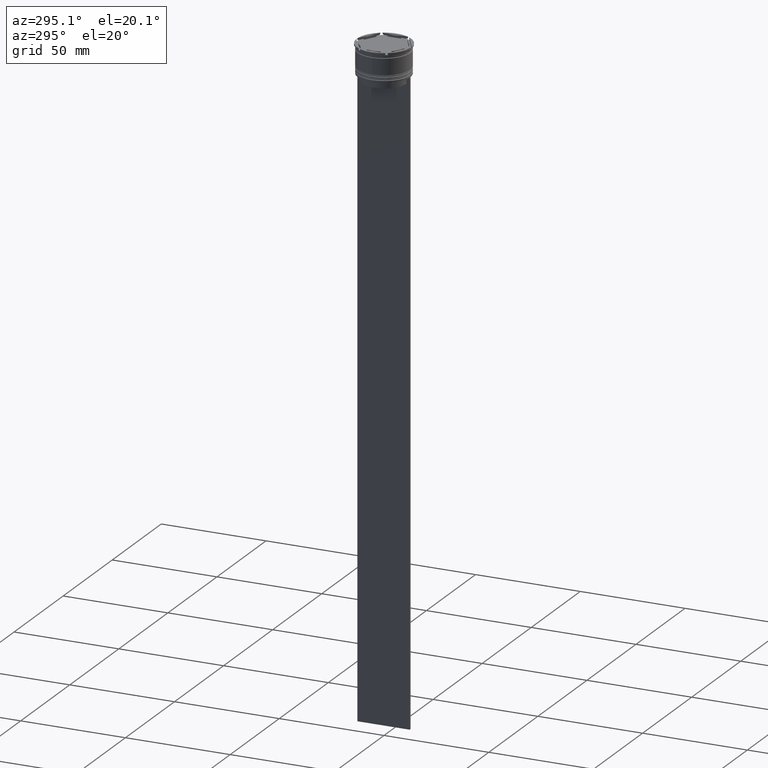
[diagram: clean part render]
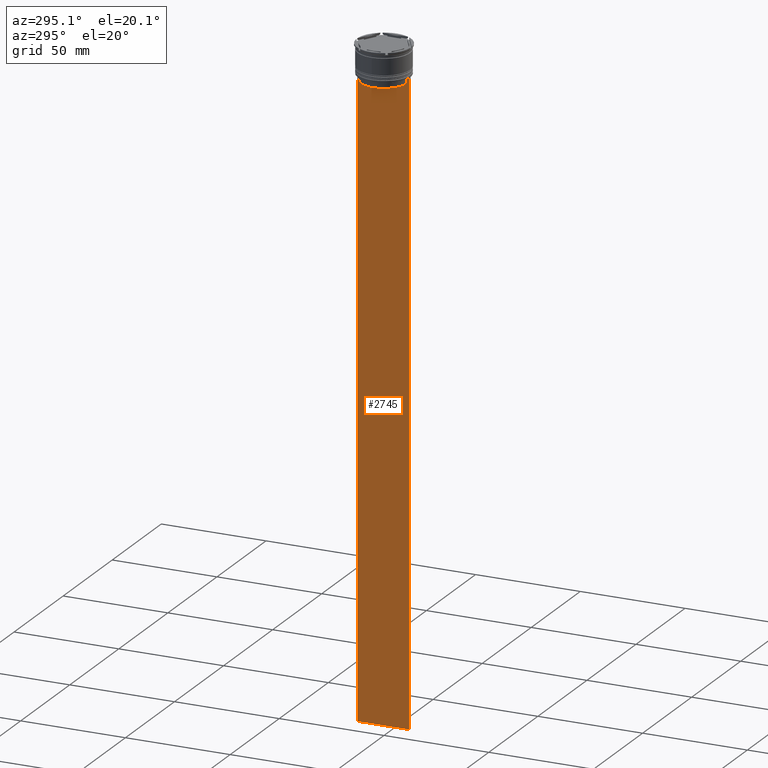
[diagram: same view with one face highlighted and labeled with its STEP entity id]
A machine part, auxiliary view. The second image highlights one B-rep face of the part: STEP entity #2745.
In plain terms, the highlighted planar face has unit normal (-1, 0, 0).
Its self-contained STEP definition (entity closure, byte-faithful):
#15 = CARTESIAN_POINT ( 'NONE',  ( -0.5000000000000000000, -12.49999999999999289, -14.00000000000000178 ) ) ;
#19 = VERTEX_POINT ( 'NONE', #562 ) ;
#29 = DIRECTION ( 'NONE',  ( 0.000000000000000000, 0.000000000000000000, -1.000000000000000000 ) ) ;
#40 = CARTESIAN_POINT ( 'NONE',  ( -0.5000000000000000000, -12.49999999999999289, -314.0000000000000000 ) ) ;
#54 = ORIENTED_EDGE ( 'NONE', *, *, #438, .F. ) ;
#62 = ORIENTED_EDGE ( 'NONE', *, *, #2740, .F. ) ;
#72 = LINE ( 'NONE', #1598, #499 ) ;
#87 = CARTESIAN_POINT ( 'NONE',  ( -0.5000000000000000000, -12.49999999999999289, -314.0000000000000000 ) ) ;
#92 = VECTOR ( 'NONE', #307, 1000.000000000000000 ) ;
#94 = VECTOR ( 'NONE', #1377, 1000.000000000000000 ) ;
#138 = DIRECTION ( 'NONE',  ( 0.000000000000000000, 0.000000000000000000, -1.000000000000000000 ) ) ;
#188 = EDGE_CURVE ( 'NONE', #1341, #485, #2579, .T. ) ;
#235 = LINE ( 'NONE', #1459, #92 ) ;
#263 = CARTESIAN_POINT ( 'NONE',  ( -0.5000000000000000000, -12.49999999999999289, -14.00000000000000178 ) ) ;
#296 = EDGE_CURVE ( 'NONE', #447, #1123, #235, .T. ) ;
#307 = DIRECTION ( 'NONE',  ( 0.000000000000000000, -1.000000000000000000, 0.000000000000000000 ) ) ;
#338 = VECTOR ( 'NONE', #1777, 1000.000000000000000 ) ;
#361 = LINE ( 'NONE', #1239, #2498 ) ;
#438 = EDGE_CURVE ( 'NONE', #2641, #2397, #917, .T. ) ;
#440 = CARTESIAN_POINT ( 'NONE',  ( -0.5000000000000000000, 12.50000000000000711, -314.0000000000000000 ) ) ;
#447 = VERTEX_POINT ( 'NONE', #2461 ) ;
#485 = VERTEX_POINT ( 'NONE', #2881 ) ;
#499 = VECTOR ( 'NONE', #2520, 1000.000000000000000 ) ;
#562 = CARTESIAN_POINT ( 'NONE',  ( -0.5000000000000000000, -10.88852607105296322, -14.50000000000000000 ) ) ;
#569 = CARTESIAN_POINT ( 'NONE',  ( -0.5000000000000000000, -11.38902980942626719, -14.00000000000000178 ) ) ;
#578 = ORIENTED_EDGE ( 'NONE', *, *, #2884, .F. ) ;
#584 = DIRECTION ( 'NONE',  ( 0.000000000000000000, 0.000000000000000000, 1.000000000000000000 ) ) ;
#588 = CARTESIAN_POINT ( 'NONE',  ( -0.5000000000000000000, 11.05536450345590538, -14.33333719074559376 ) ) ;
#593 = VERTEX_POINT ( 'NONE', #1510 ) ;
#622 = VERTEX_POINT ( 'NONE', #1028 ) ;
#629 = ORIENTED_EDGE ( 'NONE', *, *, #1926, .F. ) ;
#675 = ORIENTED_EDGE ( 'NONE', *, *, #1202, .F. ) ;
#700 = VECTOR ( 'NONE', #29, 1000.000000000000000 ) ;
#704 = VECTOR ( 'NONE', #2817, 1000.000000000000000 ) ;
#716 = B_SPLINE_CURVE_WITH_KNOTS ( 'NONE', 3,
 ( #1223, #1025, #2766, #569 ),
 .UNSPECIFIED., .F., .F.,
 ( 4, 4 ),
 ( 0.05041323384703226551, 0.05112713601261605068 ),
 .UNSPECIFIED. ) ;
#717 = ORIENTED_EDGE ( 'NONE', *, *, #1444, .T. ) ;
#784 = EDGE_CURVE ( 'NONE', #485, #2302, #2701, .T. ) ;
#894 = CARTESIAN_POINT ( 'NONE',  ( -0.5000000000000000000, -12.49999999999999289, 11.01999200639360765 ) ) ;
#917 = LINE ( 'NONE', #40, #94 ) ;
#1025 = CARTESIAN_POINT ( 'NONE',  ( -0.5000000000000000000, -11.05536450423839234, -14.33333718996393102 ) ) ;
#1028 = CARTESIAN_POINT ( 'NONE',  ( -0.5000000000000000000, 12.38991525394746773, -14.00000000000000178 ) ) ;
#1115 = DIRECTION ( 'NONE',  ( 0.000000000000000000, 0.000000000000000000, -1.000000000000000000 ) ) ;
#1118 = AXIS2_PLACEMENT_3D ( 'NONE', #1670, #2360, #584 ) ;
#1123 = VERTEX_POINT ( 'NONE', #15 ) ;
#1202 = EDGE_CURVE ( 'NONE', #1123, #2641, #2222, .T. ) ;
#1223 = CARTESIAN_POINT ( 'NONE',  ( -0.5000000000000000000, -10.88852607105296322, -14.50000000000000000 ) ) ;
#1231 = CARTESIAN_POINT ( 'NONE',  ( -0.5000000000000000000, -10.88852607105296322, 0.000000000000000000 ) ) ;
#1239 = CARTESIAN_POINT ( 'NONE',  ( -0.5000000000000000000, -12.49999999999999289, -14.00000000000000178 ) ) ;
#1288 = CARTESIAN_POINT ( 'NONE',  ( -0.5000000000000000000, -11.38902980942626719, -14.00000000000000178 ) ) ;
#1296 = ORIENTED_EDGE ( 'NONE', *, *, #1806, .F. ) ;
#1338 = LINE ( 'NONE', #263, #338 ) ;
#1341 = VERTEX_POINT ( 'NONE', #1650 ) ;
#1370 = ORIENTED_EDGE ( 'NONE', *, *, #188, .F. ) ;
#1377 = DIRECTION ( 'NONE',  ( 0.000000000000000000, 1.000000000000000000, 0.000000000000000000 ) ) ;
#1383 = ORIENTED_EDGE ( 'NONE', *, *, #1621, .F. ) ;
#1444 = EDGE_CURVE ( 'NONE', #593, #2397, #2569, .T. ) ;
#1459 = CARTESIAN_POINT ( 'NONE',  ( -0.5000000000000000000, -12.49999999999999289, -14.00000000000000178 ) ) ;
#1468 = CARTESIAN_POINT ( 'NONE',  ( -0.5000000000000000000, 10.88852607105296322, -14.50000000000000000 ) ) ;
#1487 = ORIENTED_EDGE ( 'NONE', *, *, #2144, .F. ) ;
#1502 = CARTESIAN_POINT ( 'NONE',  ( -0.5000000000000000000, 12.50000000000000711, 11.01999200639360765 ) ) ;
#1510 = CARTESIAN_POINT ( 'NONE',  ( -0.5000000000000000000, 12.50000000000000711, -14.00000000000000178 ) ) ;
#1554 = EDGE_LOOP ( 'NONE', ( #629, #1383, #1487, #717, #54, #675, #2347, #62, #578, #1296, #1969, #1370 ) ) ;
#1598 = CARTESIAN_POINT ( 'NONE',  ( -0.5000000000000000000, -12.49999999999999289, -14.00000000000000178 ) ) ;
#1621 = EDGE_CURVE ( 'NONE', #622, #1996, #1338, .T. ) ;
#1636 = DIRECTION ( 'NONE',  ( -0.000000000000000000, -0.000000000000000000, 1.000000000000000000 ) ) ;
#1650 = CARTESIAN_POINT ( 'NONE',  ( -0.5000000000000000000, 10.88852607105296322, -14.50000000000000000 ) ) ;
#1670 = CARTESIAN_POINT ( 'NONE',  ( -0.5000000000000000000, -12.49999999999999289, 11.01999200639360765 ) ) ;
#1698 = PLANE ( 'NONE',  #1118 ) ;
#1777 = DIRECTION ( 'NONE',  ( 0.000000000000000000, -1.000000000000000000, 0.000000000000000000 ) ) ;
#1806 = EDGE_CURVE ( 'NONE', #2302, #19, #2098, .T. ) ;
#1914 = CARTESIAN_POINT ( 'NONE',  ( -0.5000000000000000000, 11.38902980942626719, -14.00000000000000178 ) ) ;
#1926 = EDGE_CURVE ( 'NONE', #1996, #1341, #2319, .T. ) ;
#1947 = VECTOR ( 'NONE', #1636, 1000.000000000000000 ) ;
#1969 = ORIENTED_EDGE ( 'NONE', *, *, #784, .F. ) ;
#1986 = CARTESIAN_POINT ( 'NONE',  ( -0.5000000000000000000, 10.90000000000000213, -17.00000000000000000 ) ) ;
#1992 = CARTESIAN_POINT ( 'NONE',  ( -0.5000000000000000000, 11.38902980942626719, -14.00000000000000178 ) ) ;
#1996 = VERTEX_POINT ( 'NONE', #1992 ) ;
#2098 = LINE ( 'NONE', #1231, #1947 ) ;
#2144 = EDGE_CURVE ( 'NONE', #593, #622, #72, .T. ) ;
#2222 = LINE ( 'NONE', #894, #2839 ) ;
#2302 = VERTEX_POINT ( 'NONE', #2758 ) ;
#2309 = VERTEX_POINT ( 'NONE', #1288 ) ;
#2319 = B_SPLINE_CURVE_WITH_KNOTS ( 'NONE', 3,
 ( #1914, #2578, #588, #1468 ),
 .UNSPECIFIED., .F., .F.,
 ( 4, 4 ),
 ( 0.01935560801904634073, 0.02006307108468586772 ),
 .UNSPECIFIED. ) ;
#2347 = ORIENTED_EDGE ( 'NONE', *, *, #296, .F. ) ;
#2360 = DIRECTION ( 'NONE',  ( -1.000000000000000000, 0.000000000000000000, 0.000000000000000000 ) ) ;
#2397 = VERTEX_POINT ( 'NONE', #440 ) ;
#2460 = CARTESIAN_POINT ( 'NONE',  ( -0.5000000000000000000, 10.88852607105296322, 0.000000000000000000 ) ) ;
#2461 = CARTESIAN_POINT ( 'NONE',  ( -0.5000000000000000000, -12.38991525394746773, -14.00000000000000178 ) ) ;
#2498 = VECTOR ( 'NONE', #2573, 1000.000000000000000 ) ;
#2520 = DIRECTION ( 'NONE',  ( 0.000000000000000000, -1.000000000000000000, 0.000000000000000000 ) ) ;
#2543 = FACE_OUTER_BOUND ( 'NONE', #1554, .T. ) ;
#2569 = LINE ( 'NONE', #1502, #2843 ) ;
#2573 = DIRECTION ( 'NONE',  ( 0.000000000000000000, -1.000000000000000000, 0.000000000000000000 ) ) ;
#2578 = CARTESIAN_POINT ( 'NONE',  ( -0.5000000000000000000, 11.22219891375843304, -14.16667035472756808 ) ) ;
#2579 = LINE ( 'NONE', #2460, #700 ) ;
#2641 = VERTEX_POINT ( 'NONE', #87 ) ;
#2701 = LINE ( 'NONE', #1986, #704 ) ;
#2740 = EDGE_CURVE ( 'NONE', #2309, #447, #361, .T. ) ;
#2745 = ADVANCED_FACE ( 'NONE', ( #2543 ), #1698, .T. ) ;
#2758 = CARTESIAN_POINT ( 'NONE',  ( -0.5000000000000000000, -10.88852607105296144, -17.00000000000000000 ) ) ;
#2766 = CARTESIAN_POINT ( 'NONE',  ( -0.5000000000000000000, -11.22219891450652973, -14.16667035398018903 ) ) ;
#2817 = DIRECTION ( 'NONE',  ( 0.000000000000000000, -1.000000000000000000, 0.000000000000000000 ) ) ;
#2839 = VECTOR ( 'NONE', #1115, 1000.000000000000000 ) ;
#2843 = VECTOR ( 'NONE', #138, 1000.000000000000000 ) ;
#2881 = CARTESIAN_POINT ( 'NONE',  ( -0.5000000000000000000, 10.88852607105296144, -17.00000000000000000 ) ) ;
#2884 = EDGE_CURVE ( 'NONE', #19, #2309, #716, .T. ) ;